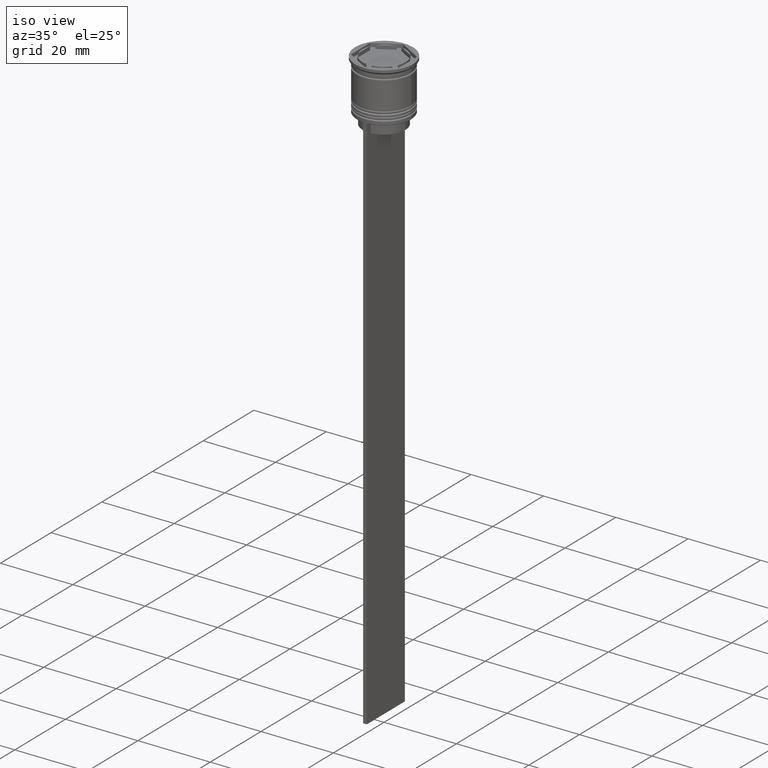
[diagram: clean part render]
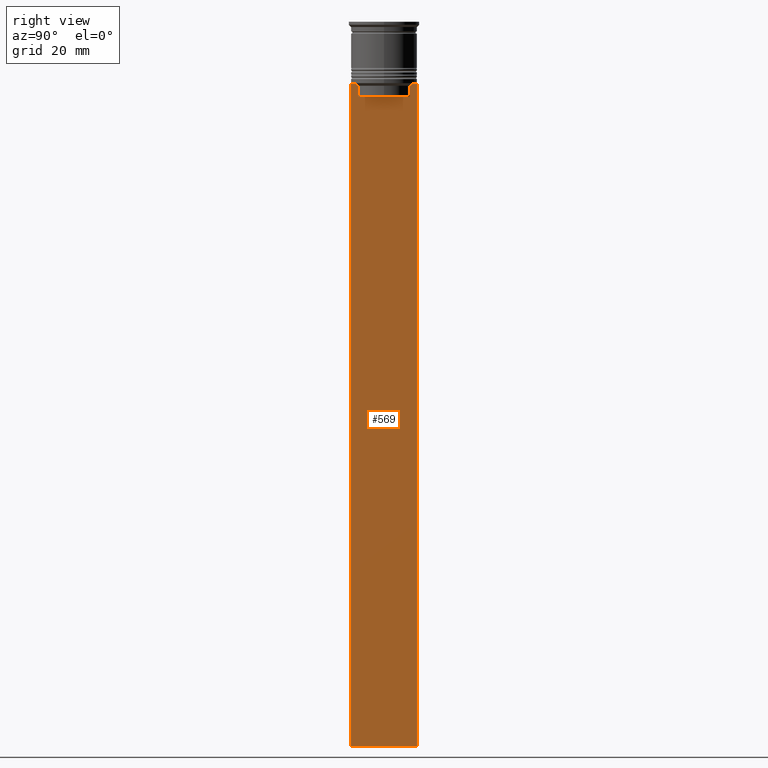
[diagram: tour spotlight — one face highlighted and labeled with its STEP entity id]
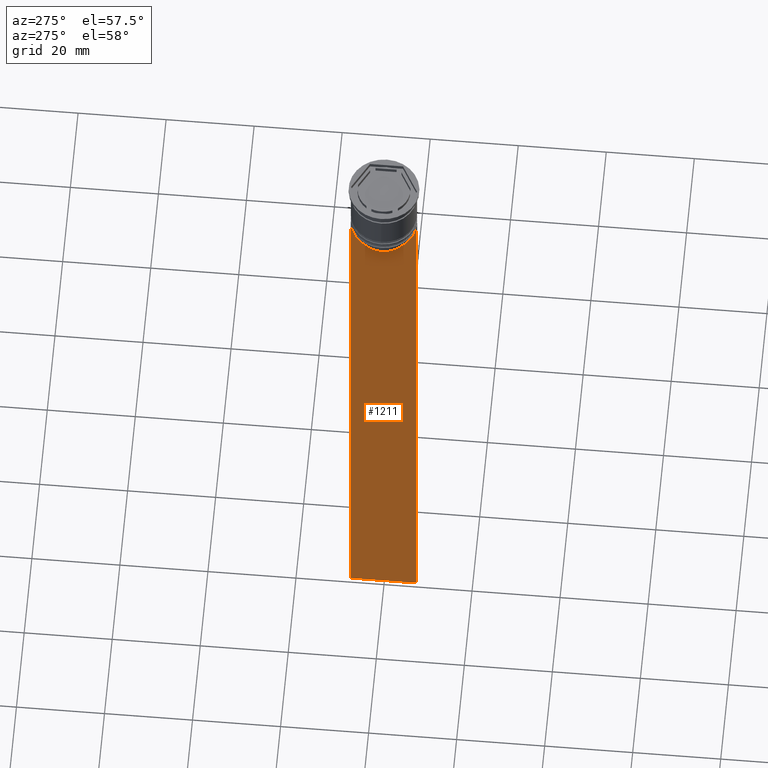
[diagram: tour spotlight — one face highlighted and labeled with its STEP entity id]
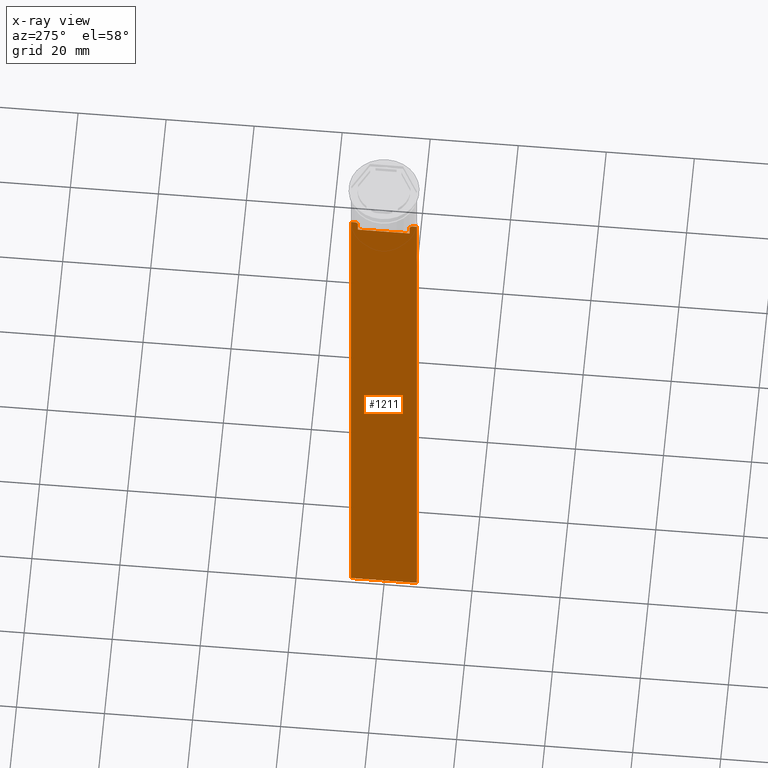
[diagram: x-ray of the same camera — body ghosted, this tour face saturated]
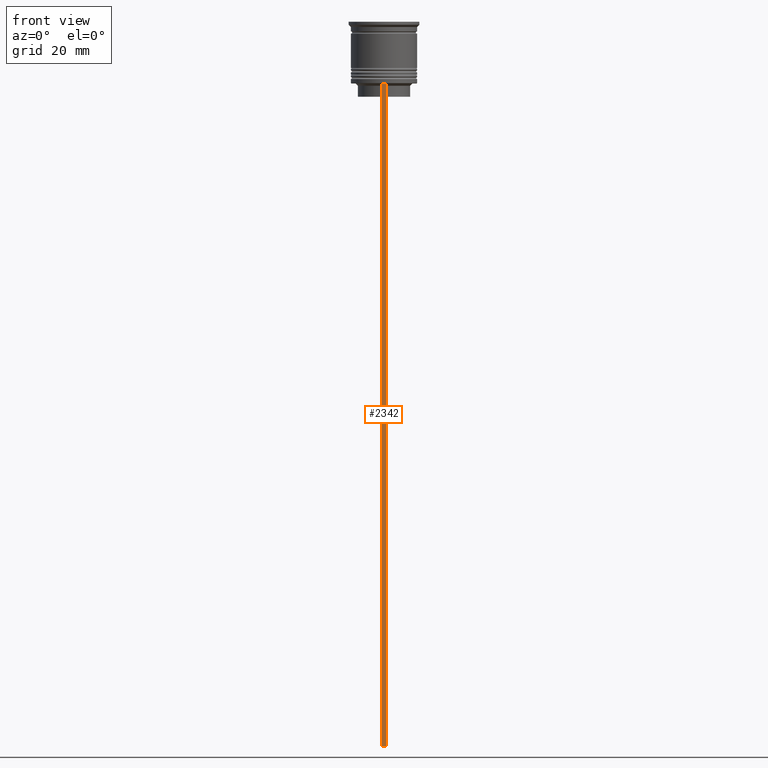
[diagram: tour spotlight — one face highlighted and labeled with its STEP entity id]
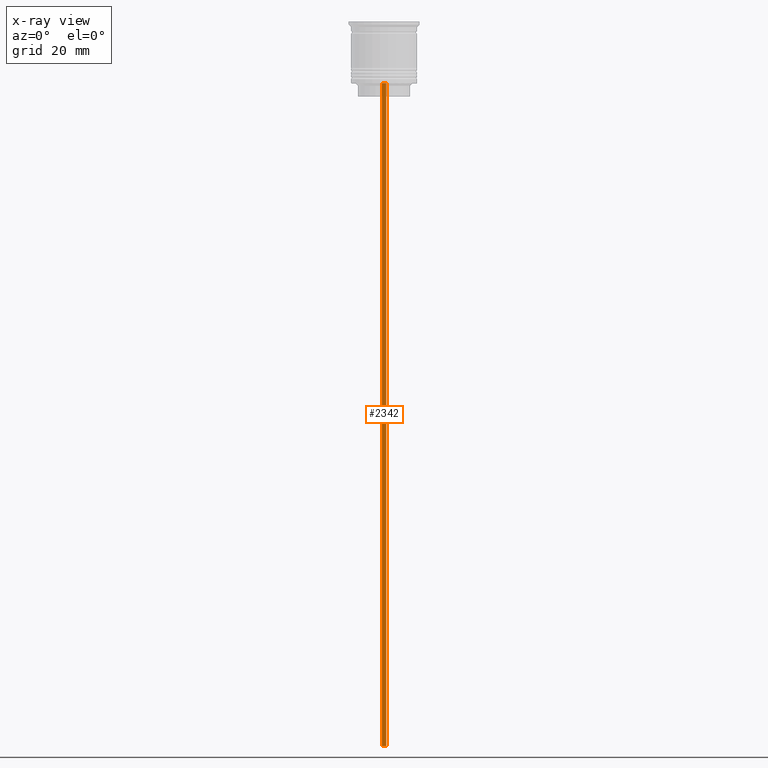
[diagram: x-ray of the same camera — body ghosted, this tour face saturated]
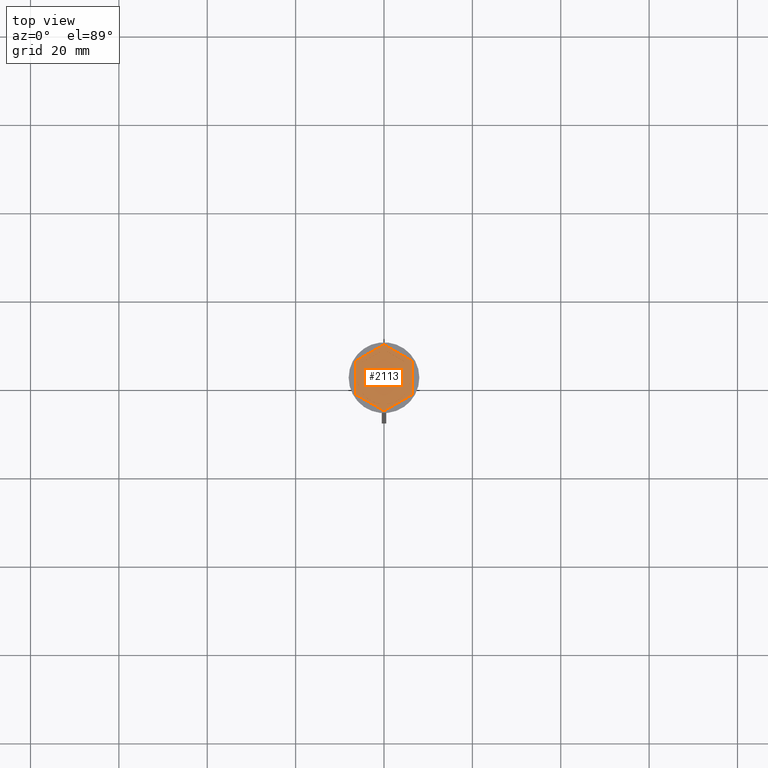
[diagram: tour spotlight — one face highlighted and labeled with its STEP entity id]
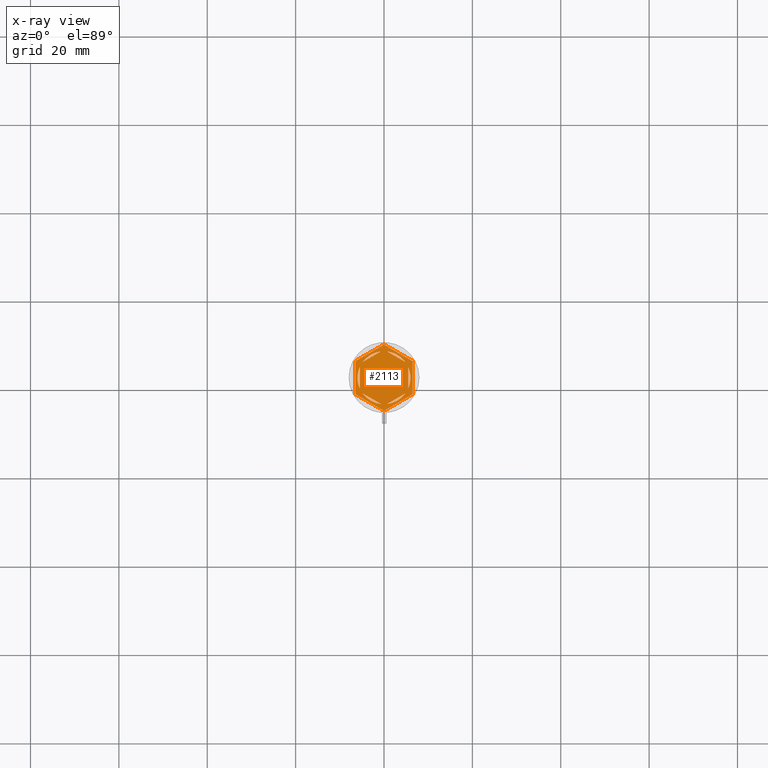
[diagram: x-ray of the same camera — body ghosted, this tour face saturated]
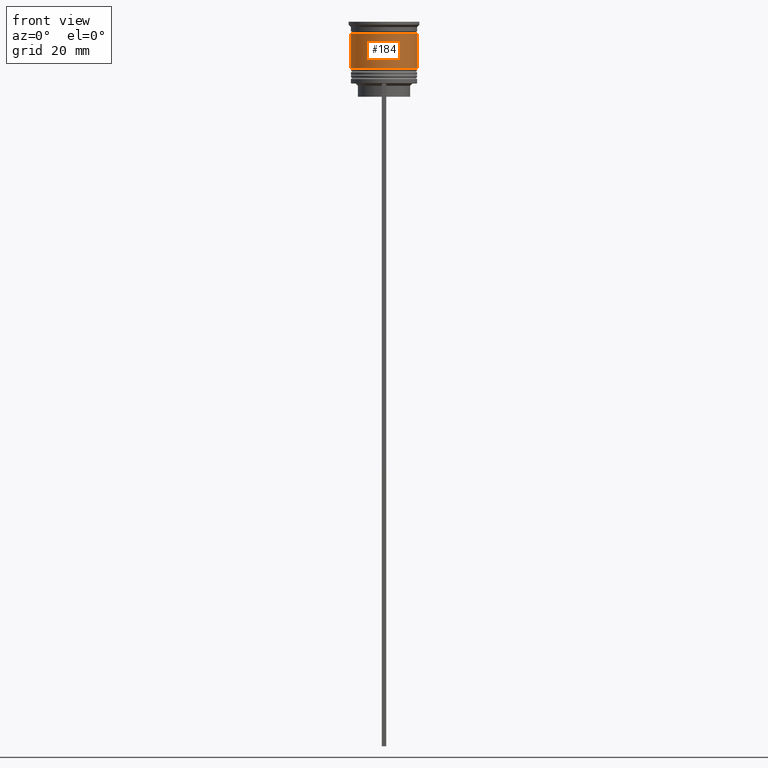
[diagram: tour spotlight — one face highlighted and labeled with its STEP entity id]
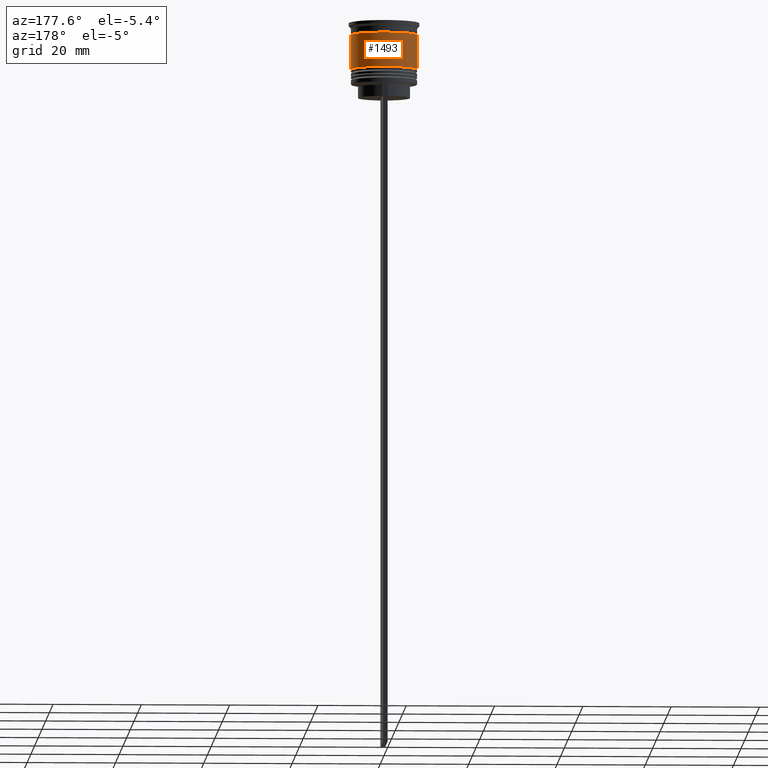
[diagram: tour spotlight — one face highlighted and labeled with its STEP entity id]
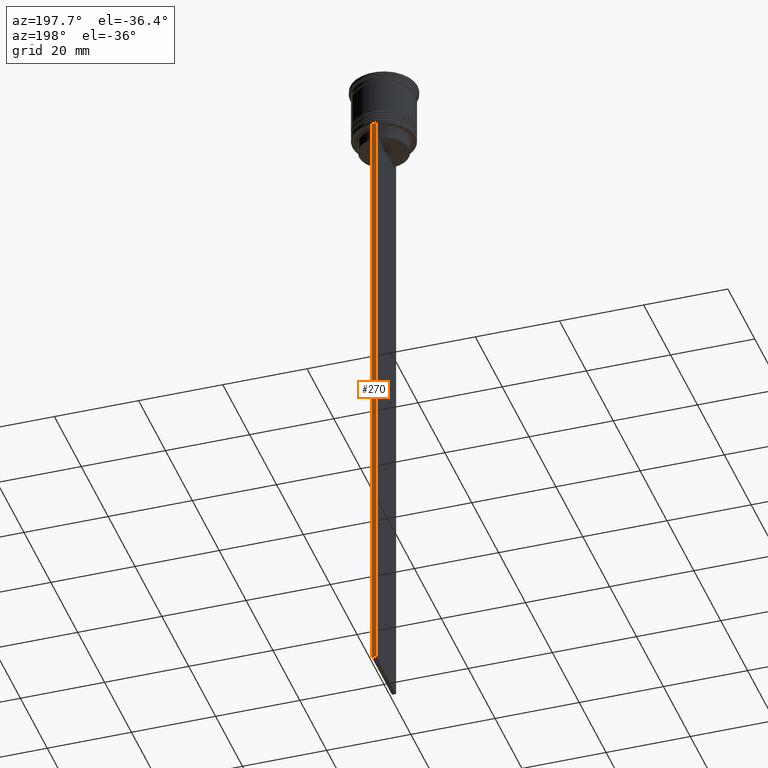
[diagram: tour spotlight — one face highlighted and labeled with its STEP entity id]
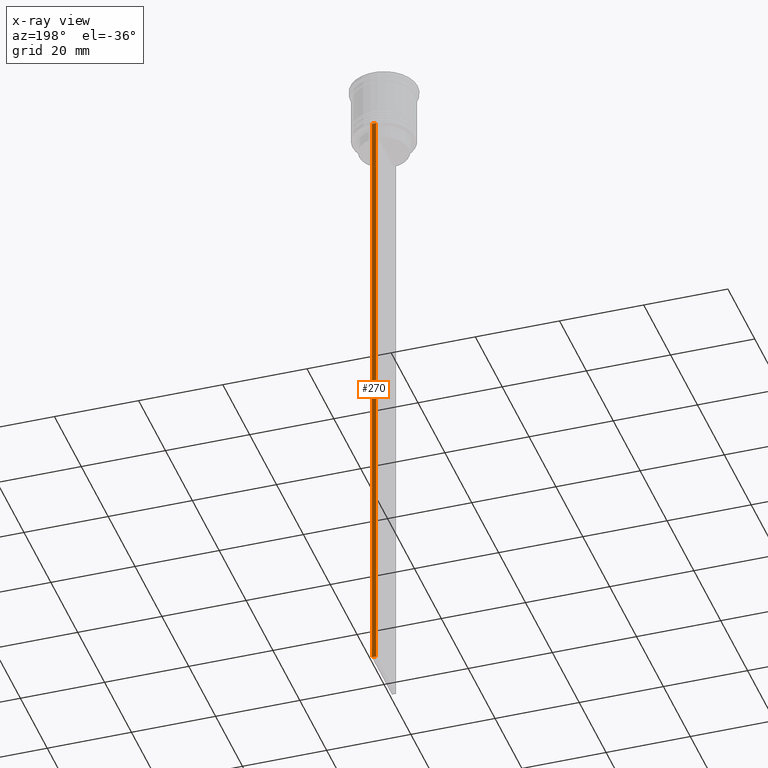
[diagram: x-ray of the same camera — body ghosted, this tour face saturated]
A machine part: a face-by-face anatomy tour. The part has 90 B-rep faces; the first image is the clean iso view, then the 7 largest visible faces are spotlighted one at a time (largest first), each with its STEP entity span.

Face 1 — right view, entity #569. In plain terms, the highlighted planar face has unit normal (-1, 0, 0).
Definition (entity closure, byte-faithful):
#11 = VECTOR ( 'NONE', #1838, 1000.000000000000000 ) ;
#62 = VERTEX_POINT ( 'NONE', #2076 ) ;
#76 = ORIENTED_EDGE ( 'NONE', *, *, #1816, .T. ) ;
#96 = DIRECTION ( 'NONE',  ( 0.000000000000000000, 0.000000000000000000, -1.000000000000000000 ) ) ;
#154 = CARTESIAN_POINT ( 'NONE',  ( 0.5000000000000000000, -7.499999999999999112, -14.00000000000000178 ) ) ;
#223 = CARTESIAN_POINT ( 'NONE',  ( 0.5000000000000000000, -6.380438856379706536, -14.00000000000000178 ) ) ;
#229 = LINE ( 'NONE', #1014, #2006 ) ;
#249 = ORIENTED_EDGE ( 'NONE', *, *, #329, .T. ) ;
#303 = VECTOR ( 'NONE', #1258, 1000.000000000000000 ) ;
#324 = DIRECTION ( 'NONE',  ( 0.000000000000000000, -1.000000000000000000, 0.000000000000000000 ) ) ;
#329 = EDGE_CURVE ( 'NONE', #1958, #1247, #229, .T. ) ;
#335 = DIRECTION ( 'NONE',  ( 0.000000000000000000, -1.000000000000000000, 0.000000000000000000 ) ) ;
#342 = AXIS2_PLACEMENT_3D ( 'NONE', #934, #1707, #2340 ) ;
#354 = CARTESIAN_POINT ( 'NONE',  ( 0.5000000000000000000, -5.878775382679625849, -14.50000000000000000 ) ) ;
#356 = DIRECTION ( 'NONE',  ( 0.000000000000000000, 0.000000000000000000, -1.000000000000000000 ) ) ;
#360 = VERTEX_POINT ( 'NONE', #991 ) ;
#369 = CARTESIAN_POINT ( 'NONE',  ( 0.5000000000000000000, -6.213239311785844876, -14.16668851110870087 ) ) ;
#384 = CARTESIAN_POINT ( 'NONE',  ( 0.5000000000000000000, -5.878775382679625849, -17.00000000000000000 ) ) ;
#401 = VERTEX_POINT ( 'NONE', #1411 ) ;
#426 = DIRECTION ( 'NONE',  ( 0.000000000000000000, -1.000000000000000000, 0.000000000000000000 ) ) ;
#447 = EDGE_CURVE ( 'NONE', #1002, #1958, #2483, .T. ) ;
#454 = ORIENTED_EDGE ( 'NONE', *, *, #1018, .T. ) ;
#471 = LINE ( 'NONE', #2014, #1735 ) ;
#475 = VECTOR ( 'NONE', #335, 1000.000000000000000 ) ;
#490 = CARTESIAN_POINT ( 'NONE',  ( 0.5000000000000000000, -5.878775382679625849, 0.000000000000000000 ) ) ;
#502 = VECTOR ( 'NONE', #356, 1000.000000000000000 ) ;
#509 = CARTESIAN_POINT ( 'NONE',  ( 0.5000000000000000000, -7.499999999999999112, 1.033296378372908997 ) ) ;
#520 = CARTESIAN_POINT ( 'NONE',  ( 0.5000000000000000000, -7.383088784512886527, -14.00000000000000178 ) ) ;
#569 = ADVANCED_FACE ( 'NONE', ( #888 ), #1506, .F. ) ;
#603 = ORIENTED_EDGE ( 'NONE', *, *, #942, .T. ) ;
#617 = VERTEX_POINT ( 'NONE', #223 ) ;
#713 = B_SPLINE_CURVE_WITH_KNOTS ( 'NONE', 3,
 ( #354, #2132, #369, #1356 ),
 .UNSPECIFIED., .F., .F.,
 ( 4, 4 ),
 ( 0.02765270321082434479, 0.02836198271238431559 ),
 .UNSPECIFIED. ) ;
#833 = VECTOR ( 'NONE', #426, 1000.000000000000000 ) ;
#846 = VECTOR ( 'NONE', #1210, 1000.000000000000000 ) ;
#861 = ORIENTED_EDGE ( 'NONE', *, *, #447, .T. ) ;
#881 = VERTEX_POINT ( 'NONE', #1729 ) ;
#888 = FACE_OUTER_BOUND ( 'NONE', #1371, .T. ) ;
#910 = ORIENTED_EDGE ( 'NONE', *, *, #1756, .T. ) ;
#934 = CARTESIAN_POINT ( 'NONE',  ( 0.5000000000000000000, -7.499999999999999112, 1.033296378372908997 ) ) ;
#942 = EDGE_CURVE ( 'NONE', #2013, #1326, #1695, .T. ) ;
#969 = DIRECTION ( 'NONE',  ( 0.000000000000000000, -1.000000000000000000, 0.000000000000000000 ) ) ;
#979 = CARTESIAN_POINT ( 'NONE',  ( 0.5000000000000000000, -7.499999999999999112, -14.00000000000000178 ) ) ;
#991 = CARTESIAN_POINT ( 'NONE',  ( 0.5000000000000000000, 7.383088784512886527, -14.00000000000000178 ) ) ;
#1002 = VERTEX_POINT ( 'NONE', #154 ) ;
#1014 = CARTESIAN_POINT ( 'NONE',  ( 0.5000000000000000000, -7.499999999999999112, -163.9999999999999716 ) ) ;
#1018 = EDGE_CURVE ( 'NONE', #2180, #401, #1694, .T. ) ;
#1167 = ORIENTED_EDGE ( 'NONE', *, *, #1687, .F. ) ;
#1210 = DIRECTION ( 'NONE',  ( 0.000000000000000000, 0.000000000000000000, -1.000000000000000000 ) ) ;
#1247 = VERTEX_POINT ( 'NONE', #2112 ) ;
#1252 = EDGE_CURVE ( 'NONE', #360, #2180, #1361, .T. ) ;
#1258 = DIRECTION ( 'NONE',  ( -0.000000000000000000, -0.000000000000000000, 1.000000000000000000 ) ) ;
#1326 = VERTEX_POINT ( 'NONE', #1806 ) ;
#1344 = ORIENTED_EDGE ( 'NONE', *, *, #1867, .T. ) ;
#1356 = CARTESIAN_POINT ( 'NONE',  ( 0.5000000000000000000, -6.380438856379706536, -14.00000000000000178 ) ) ;
#1361 = LINE ( 'NONE', #979, #1396 ) ;
#1371 = EDGE_LOOP ( 'NONE', ( #1972, #454, #910, #1438, #603, #1516, #1344, #76, #861, #249, #1167, #1652 ) ) ;
#1396 = VECTOR ( 'NONE', #969, 1000.000000000000000 ) ;
#1411 = CARTESIAN_POINT ( 'NONE',  ( 0.5000000000000000000, 5.878775382679625849, -14.50000000000000000 ) ) ;
#1438 = ORIENTED_EDGE ( 'NONE', *, *, #2273, .T. ) ;
#1498 = CARTESIAN_POINT ( 'NONE',  ( 0.5000000000000000000, 5.899999999999998579, -17.00000000000000000 ) ) ;
#1506 = PLANE ( 'NONE',  #342 ) ;
#1510 = LINE ( 'NONE', #1686, #475 ) ;
#1516 = ORIENTED_EDGE ( 'NONE', *, *, #2369, .T. ) ;
#1546 = EDGE_CURVE ( 'NONE', #62, #360, #2148, .T. ) ;
#1547 = DIRECTION ( 'NONE',  ( 0.000000000000000000, 1.000000000000000000, 0.000000000000000000 ) ) ;
#1652 = ORIENTED_EDGE ( 'NONE', *, *, #1546, .T. ) ;
#1686 = CARTESIAN_POINT ( 'NONE',  ( 0.5000000000000000000, -7.499999999999999112, -14.00000000000000178 ) ) ;
#1687 = EDGE_CURVE ( 'NONE', #62, #1247, #2398, .T. ) ;
#1694 = B_SPLINE_CURVE_WITH_KNOTS ( 'NONE', 3,
 ( #2073, #2093, #2421, #1857 ),
 .UNSPECIFIED., .F., .F.,
 ( 4, 4 ),
 ( 0.01087727669788152163, 0.01158556069794289788 ),
 .UNSPECIFIED. ) ;
#1695 = LINE ( 'NONE', #490, #303 ) ;
#1707 = DIRECTION ( 'NONE',  ( -1.000000000000000000, 0.000000000000000000, 0.000000000000000000 ) ) ;
#1729 = CARTESIAN_POINT ( 'NONE',  ( 0.5000000000000000000, 5.878775382679625849, -17.00000000000000000 ) ) ;
#1735 = VECTOR ( 'NONE', #96, 1000.000000000000000 ) ;
#1756 = EDGE_CURVE ( 'NONE', #401, #881, #471, .T. ) ;
#1806 = CARTESIAN_POINT ( 'NONE',  ( 0.5000000000000000000, -5.878775382679625849, -14.50000000000000000 ) ) ;
#1816 = EDGE_CURVE ( 'NONE', #2194, #1002, #2064, .T. ) ;
#1838 = DIRECTION ( 'NONE',  ( 0.000000000000000000, -1.000000000000000000, 0.000000000000000000 ) ) ;
#1857 = CARTESIAN_POINT ( 'NONE',  ( 0.5000000000000000000, 5.878775382679625849, -14.50000000000000000 ) ) ;
#1867 = EDGE_CURVE ( 'NONE', #617, #2194, #1510, .T. ) ;
#1958 = VERTEX_POINT ( 'NONE', #2328 ) ;
#1965 = CARTESIAN_POINT ( 'NONE',  ( 0.5000000000000000000, -7.499999999999999112, -14.00000000000000178 ) ) ;
#1972 = ORIENTED_EDGE ( 'NONE', *, *, #1252, .T. ) ;
#2006 = VECTOR ( 'NONE', #1547, 1000.000000000000000 ) ;
#2013 = VERTEX_POINT ( 'NONE', #384 ) ;
#2014 = CARTESIAN_POINT ( 'NONE',  ( 0.5000000000000000000, 5.878775382679625849, 0.000000000000000000 ) ) ;
#2019 = VECTOR ( 'NONE', #324, 1000.000000000000000 ) ;
#2026 = CARTESIAN_POINT ( 'NONE',  ( 0.5000000000000000000, 7.500000000000002665, 1.033296378372908997 ) ) ;
#2064 = LINE ( 'NONE', #2092, #2019 ) ;
#2073 = CARTESIAN_POINT ( 'NONE',  ( 0.5000000000000000000, 6.380438856379706536, -14.00000000000000178 ) ) ;
#2076 = CARTESIAN_POINT ( 'NONE',  ( 0.5000000000000000000, 7.500000000000002665, -14.00000000000000178 ) ) ;
#2092 = CARTESIAN_POINT ( 'NONE',  ( 0.5000000000000000000, -7.499999999999999112, -14.00000000000000178 ) ) ;
#2093 = CARTESIAN_POINT ( 'NONE',  ( 0.5000000000000000000, 6.213239387491007015, -14.16668843563492430 ) ) ;
#2112 = CARTESIAN_POINT ( 'NONE',  ( 0.5000000000000000000, 7.500000000000002665, -163.9999999999999716 ) ) ;
#2132 = CARTESIAN_POINT ( 'NONE',  ( 0.5000000000000000000, -6.046019991840948293, -14.33335703538585726 ) ) ;
#2148 = LINE ( 'NONE', #1965, #833 ) ;
#2180 = VERTEX_POINT ( 'NONE', #2472 ) ;
#2194 = VERTEX_POINT ( 'NONE', #520 ) ;
#2273 = EDGE_CURVE ( 'NONE', #881, #2013, #2418, .T. ) ;
#2328 = CARTESIAN_POINT ( 'NONE',  ( 0.5000000000000000000, -7.499999999999999112, -163.9999999999999716 ) ) ;
#2340 = DIRECTION ( 'NONE',  ( 0.000000000000000000, 0.000000000000000000, 1.000000000000000000 ) ) ;
#2369 = EDGE_CURVE ( 'NONE', #1326, #617, #713, .T. ) ;
#2398 = LINE ( 'NONE', #2026, #846 ) ;
#2418 = LINE ( 'NONE', #1498, #11 ) ;
#2421 = CARTESIAN_POINT ( 'NONE',  ( 0.5000000000000000000, 6.046020074006152711, -14.33335695351623151 ) ) ;
#2472 = CARTESIAN_POINT ( 'NONE',  ( 0.5000000000000000000, 6.380438856379706536, -14.00000000000000178 ) ) ;
#2483 = LINE ( 'NONE', #509, #502 ) ;

Face 2 — auxiliary view, entity #1211. An x-ray twin of the same camera follows (body ghosted, this face saturated) — the face is partly hidden behind the body. In plain terms, the highlighted planar face has unit normal (-1, 0, 0).
Definition (entity closure, byte-faithful):
#6 = CARTESIAN_POINT ( 'NONE',  ( -0.5000000000000000000, 5.878775382679625849, -17.00000000000000000 ) ) ;
#38 = VECTOR ( 'NONE', #2002, 1000.000000000000000 ) ;
#78 = VERTEX_POINT ( 'NONE', #1350 ) ;
#87 = DIRECTION ( 'NONE',  ( 0.000000000000000000, -1.000000000000000000, 0.000000000000000000 ) ) ;
#150 = EDGE_CURVE ( 'NONE', #1545, #260, #1747, .T. ) ;
#204 = CARTESIAN_POINT ( 'NONE',  ( -0.5000000000000000000, 5.899999999999998579, -17.00000000000000000 ) ) ;
#225 = VERTEX_POINT ( 'NONE', #913 ) ;
#260 = VERTEX_POINT ( 'NONE', #2121 ) ;
#263 = ORIENTED_EDGE ( 'NONE', *, *, #761, .F. ) ;
#282 = EDGE_CURVE ( 'NONE', #754, #225, #884, .T. ) ;
#288 = CARTESIAN_POINT ( 'NONE',  ( -0.5000000000000000000, -5.878775382679625849, -17.00000000000000000 ) ) ;
#348 = AXIS2_PLACEMENT_3D ( 'NONE', #573, #1117, #916 ) ;
#368 = DIRECTION ( 'NONE',  ( 0.000000000000000000, 0.000000000000000000, -1.000000000000000000 ) ) ;
#375 = LINE ( 'NONE', #2309, #2162 ) ;
#400 = CARTESIAN_POINT ( 'NONE',  ( -0.5000000000000000000, -6.380438856379706536, -14.00000000000000178 ) ) ;
#405 = CARTESIAN_POINT ( 'NONE',  ( -0.5000000000000000000, -7.499999999999999112, -14.00000000000000178 ) ) ;
#476 = VERTEX_POINT ( 'NONE', #2177 ) ;
#511 = CARTESIAN_POINT ( 'NONE',  ( -0.5000000000000000000, -7.499999999999999112, 1.033296378372908997 ) ) ;
#524 = CARTESIAN_POINT ( 'NONE',  ( -0.5000000000000000000, 6.213239387491007015, -14.16668843563492430 ) ) ;
#525 = CARTESIAN_POINT ( 'NONE',  ( -0.5000000000000000000, 5.878775382679625849, -14.50000000000000000 ) ) ;
#555 = VECTOR ( 'NONE', #736, 1000.000000000000000 ) ;
#573 = CARTESIAN_POINT ( 'NONE',  ( -0.5000000000000000000, -7.499999999999999112, 1.033296378372908997 ) ) ;
#586 = EDGE_CURVE ( 'NONE', #1113, #1991, #1377, .T. ) ;
#591 = CARTESIAN_POINT ( 'NONE',  ( -0.5000000000000000000, 7.500000000000002665, -14.00000000000000178 ) ) ;
#593 = CARTESIAN_POINT ( 'NONE',  ( -0.5000000000000000000, -6.213239311785844876, -14.16668851110870087 ) ) ;
#621 = DIRECTION ( 'NONE',  ( 0.000000000000000000, -1.000000000000000000, 0.000000000000000000 ) ) ;
#690 = ORIENTED_EDGE ( 'NONE', *, *, #1935, .F. ) ;
#694 = PLANE ( 'NONE',  #348 ) ;
#736 = DIRECTION ( 'NONE',  ( 0.000000000000000000, 0.000000000000000000, -1.000000000000000000 ) ) ;
#754 = VERTEX_POINT ( 'NONE', #1653 ) ;
#757 = CARTESIAN_POINT ( 'NONE',  ( -0.5000000000000000000, 5.878775382679625849, -14.50000000000000000 ) ) ;
#761 = EDGE_CURVE ( 'NONE', #225, #1545, #375, .T. ) ;
#773 = CARTESIAN_POINT ( 'NONE',  ( -0.5000000000000000000, -7.499999999999999112, -163.9999999999999716 ) ) ;
#884 = B_SPLINE_CURVE_WITH_KNOTS ( 'NONE', 3,
 ( #1360, #2135, #593, #400 ),
 .UNSPECIFIED., .F., .F.,
 ( 4, 4 ),
 ( 0.02765270321082434479, 0.02836198271238431559 ),
 .UNSPECIFIED. ) ;
#892 = CARTESIAN_POINT ( 'NONE',  ( -0.5000000000000000000, -7.499999999999999112, -14.00000000000000178 ) ) ;
#913 = CARTESIAN_POINT ( 'NONE',  ( -0.5000000000000000000, -6.380438856379706536, -14.00000000000000178 ) ) ;
#916 = DIRECTION ( 'NONE',  ( 0.000000000000000000, 0.000000000000000000, 1.000000000000000000 ) ) ;
#955 = CARTESIAN_POINT ( 'NONE',  ( -0.5000000000000000000, -5.878775382679625849, 0.000000000000000000 ) ) ;
#976 = ORIENTED_EDGE ( 'NONE', *, *, #150, .F. ) ;
#1039 = VECTOR ( 'NONE', #1952, 1000.000000000000000 ) ;
#1056 = LINE ( 'NONE', #892, #1891 ) ;
#1060 = EDGE_CURVE ( 'NONE', #78, #476, #1845, .T. ) ;
#1113 = VERTEX_POINT ( 'NONE', #525 ) ;
#1117 = DIRECTION ( 'NONE',  ( -1.000000000000000000, 0.000000000000000000, 0.000000000000000000 ) ) ;
#1155 = CARTESIAN_POINT ( 'NONE',  ( -0.5000000000000000000, -7.499999999999999112, -163.9999999999999716 ) ) ;
#1181 = DIRECTION ( 'NONE',  ( 0.000000000000000000, 1.000000000000000000, 0.000000000000000000 ) ) ;
#1192 = DIRECTION ( 'NONE',  ( 0.000000000000000000, 0.000000000000000000, -1.000000000000000000 ) ) ;
#1199 = LINE ( 'NONE', #955, #38 ) ;
#1211 = ADVANCED_FACE ( 'NONE', ( #2434 ), #694, .T. ) ;
#1232 = B_SPLINE_CURVE_WITH_KNOTS ( 'NONE', 3,
 ( #2300, #524, #2491, #757 ),
 .UNSPECIFIED., .F., .F.,
 ( 4, 4 ),
 ( 0.01087727669788152163, 0.01158556069794289788 ),
 .UNSPECIFIED. ) ;
#1265 = VECTOR ( 'NONE', #368, 1000.000000000000000 ) ;
#1299 = EDGE_CURVE ( 'NONE', #2028, #2161, #1920, .T. ) ;
#1300 = EDGE_CURVE ( 'NONE', #2028, #78, #1056, .T. ) ;
#1307 = VECTOR ( 'NONE', #621, 1000.000000000000000 ) ;
#1333 = LINE ( 'NONE', #1155, #2096 ) ;
#1350 = CARTESIAN_POINT ( 'NONE',  ( -0.5000000000000000000, 7.383088784512886527, -14.00000000000000178 ) ) ;
#1358 = VECTOR ( 'NONE', #1192, 1000.000000000000000 ) ;
#1359 = LINE ( 'NONE', #204, #1039 ) ;
#1360 = CARTESIAN_POINT ( 'NONE',  ( -0.5000000000000000000, -5.878775382679625849, -14.50000000000000000 ) ) ;
#1377 = LINE ( 'NONE', #2325, #1265 ) ;
#1381 = EDGE_CURVE ( 'NONE', #476, #1113, #1232, .T. ) ;
#1412 = ORIENTED_EDGE ( 'NONE', *, *, #282, .F. ) ;
#1494 = CARTESIAN_POINT ( 'NONE',  ( -0.5000000000000000000, -7.499999999999999112, -14.00000000000000178 ) ) ;
#1509 = ORIENTED_EDGE ( 'NONE', *, *, #1621, .F. ) ;
#1545 = VERTEX_POINT ( 'NONE', #2157 ) ;
#1549 = CARTESIAN_POINT ( 'NONE',  ( -0.5000000000000000000, 7.500000000000002665, 1.033296378372908997 ) ) ;
#1621 = EDGE_CURVE ( 'NONE', #1712, #754, #1199, .T. ) ;
#1653 = CARTESIAN_POINT ( 'NONE',  ( -0.5000000000000000000, -5.878775382679625849, -14.50000000000000000 ) ) ;
#1712 = VERTEX_POINT ( 'NONE', #288 ) ;
#1747 = LINE ( 'NONE', #405, #1307 ) ;
#1779 = EDGE_LOOP ( 'NONE', ( #2308, #2114, #2355, #2290, #690, #2147, #976, #263, #1412, #1509, #1836, #1862 ) ) ;
#1836 = ORIENTED_EDGE ( 'NONE', *, *, #2037, .F. ) ;
#1845 = LINE ( 'NONE', #1494, #2088 ) ;
#1862 = ORIENTED_EDGE ( 'NONE', *, *, #586, .F. ) ;
#1891 = VECTOR ( 'NONE', #87, 1000.000000000000000 ) ;
#1917 = EDGE_CURVE ( 'NONE', #260, #2424, #2243, .T. ) ;
#1920 = LINE ( 'NONE', #1549, #1358 ) ;
#1935 = EDGE_CURVE ( 'NONE', #2424, #2161, #1333, .T. ) ;
#1941 = DIRECTION ( 'NONE',  ( 0.000000000000000000, -1.000000000000000000, 0.000000000000000000 ) ) ;
#1952 = DIRECTION ( 'NONE',  ( 0.000000000000000000, -1.000000000000000000, 0.000000000000000000 ) ) ;
#1991 = VERTEX_POINT ( 'NONE', #6 ) ;
#2002 = DIRECTION ( 'NONE',  ( -0.000000000000000000, -0.000000000000000000, 1.000000000000000000 ) ) ;
#2028 = VERTEX_POINT ( 'NONE', #591 ) ;
#2037 = EDGE_CURVE ( 'NONE', #1991, #1712, #1359, .T. ) ;
#2088 = VECTOR ( 'NONE', #2270, 1000.000000000000000 ) ;
#2096 = VECTOR ( 'NONE', #1181, 1000.000000000000000 ) ;
#2114 = ORIENTED_EDGE ( 'NONE', *, *, #1060, .F. ) ;
#2121 = CARTESIAN_POINT ( 'NONE',  ( -0.5000000000000000000, -7.499999999999999112, -14.00000000000000178 ) ) ;
#2135 = CARTESIAN_POINT ( 'NONE',  ( -0.5000000000000000000, -6.046019991840948293, -14.33335703538585726 ) ) ;
#2147 = ORIENTED_EDGE ( 'NONE', *, *, #1917, .F. ) ;
#2157 = CARTESIAN_POINT ( 'NONE',  ( -0.5000000000000000000, -7.383088784512886527, -14.00000000000000178 ) ) ;
#2161 = VERTEX_POINT ( 'NONE', #2403 ) ;
#2162 = VECTOR ( 'NONE', #1941, 1000.000000000000000 ) ;
#2177 = CARTESIAN_POINT ( 'NONE',  ( -0.5000000000000000000, 6.380438856379706536, -14.00000000000000178 ) ) ;
#2243 = LINE ( 'NONE', #511, #555 ) ;
#2270 = DIRECTION ( 'NONE',  ( 0.000000000000000000, -1.000000000000000000, 0.000000000000000000 ) ) ;
#2290 = ORIENTED_EDGE ( 'NONE', *, *, #1299, .T. ) ;
#2300 = CARTESIAN_POINT ( 'NONE',  ( -0.5000000000000000000, 6.380438856379706536, -14.00000000000000178 ) ) ;
#2308 = ORIENTED_EDGE ( 'NONE', *, *, #1381, .F. ) ;
#2309 = CARTESIAN_POINT ( 'NONE',  ( -0.5000000000000000000, -7.499999999999999112, -14.00000000000000178 ) ) ;
#2325 = CARTESIAN_POINT ( 'NONE',  ( -0.5000000000000000000, 5.878775382679625849, 0.000000000000000000 ) ) ;
#2355 = ORIENTED_EDGE ( 'NONE', *, *, #1300, .F. ) ;
#2403 = CARTESIAN_POINT ( 'NONE',  ( -0.5000000000000000000, 7.500000000000002665, -163.9999999999999716 ) ) ;
#2424 = VERTEX_POINT ( 'NONE', #773 ) ;
#2434 = FACE_OUTER_BOUND ( 'NONE', #1779, .T. ) ;
#2491 = CARTESIAN_POINT ( 'NONE',  ( -0.5000000000000000000, 6.046020074006152711, -14.33335695351623151 ) ) ;

Face 3 — front view, entity #2342. An x-ray twin of the same camera follows (body ghosted, this face saturated) — the face is partly hidden behind the body. In plain terms, the highlighted planar face has unit normal (0, -1, -0).
Definition (entity closure, byte-faithful):
#154 = CARTESIAN_POINT ( 'NONE',  ( 0.5000000000000000000, -7.499999999999999112, -14.00000000000000178 ) ) ;
#169 = ORIENTED_EDGE ( 'NONE', *, *, #447, .F. ) ;
#188 = LINE ( 'NONE', #2239, #1798 ) ;
#260 = VERTEX_POINT ( 'NONE', #2121 ) ;
#277 = ORIENTED_EDGE ( 'NONE', *, *, #495, .F. ) ;
#356 = DIRECTION ( 'NONE',  ( 0.000000000000000000, 0.000000000000000000, -1.000000000000000000 ) ) ;
#447 = EDGE_CURVE ( 'NONE', #1002, #1958, #2483, .T. ) ;
#466 = EDGE_CURVE ( 'NONE', #260, #1002, #188, .T. ) ;
#495 = EDGE_CURVE ( 'NONE', #1958, #2424, #1615, .T. ) ;
#502 = VECTOR ( 'NONE', #356, 1000.000000000000000 ) ;
#509 = CARTESIAN_POINT ( 'NONE',  ( 0.5000000000000000000, -7.499999999999999112, 1.033296378372908997 ) ) ;
#511 = CARTESIAN_POINT ( 'NONE',  ( -0.5000000000000000000, -7.499999999999999112, 1.033296378372908997 ) ) ;
#555 = VECTOR ( 'NONE', #736, 1000.000000000000000 ) ;
#736 = DIRECTION ( 'NONE',  ( 0.000000000000000000, 0.000000000000000000, -1.000000000000000000 ) ) ;
#773 = CARTESIAN_POINT ( 'NONE',  ( -0.5000000000000000000, -7.499999999999999112, -163.9999999999999716 ) ) ;
#1002 = VERTEX_POINT ( 'NONE', #154 ) ;
#1019 = CARTESIAN_POINT ( 'NONE',  ( 0.5000000000000000000, -7.499999999999999112, -163.9999999999999716 ) ) ;
#1342 = CARTESIAN_POINT ( 'NONE',  ( 0.5000000000000000000, -7.499999999999999112, 1.033296378372908997 ) ) ;
#1554 = DIRECTION ( 'NONE',  ( 0.000000000000000000, -1.000000000000000000, -0.000000000000000000 ) ) ;
#1566 = ORIENTED_EDGE ( 'NONE', *, *, #466, .F. ) ;
#1615 = LINE ( 'NONE', #1019, #2279 ) ;
#1708 = PLANE ( 'NONE',  #2339 ) ;
#1750 = DIRECTION ( 'NONE',  ( 0.000000000000000000, 0.000000000000000000, -1.000000000000000000 ) ) ;
#1798 = VECTOR ( 'NONE', #2044, 1000.000000000000000 ) ;
#1882 = FACE_OUTER_BOUND ( 'NONE', #1892, .T. ) ;
#1892 = EDGE_LOOP ( 'NONE', ( #1566, #2338, #277, #169 ) ) ;
#1917 = EDGE_CURVE ( 'NONE', #260, #2424, #2243, .T. ) ;
#1958 = VERTEX_POINT ( 'NONE', #2328 ) ;
#2044 = DIRECTION ( 'NONE',  ( 1.000000000000000000, 0.000000000000000000, 0.000000000000000000 ) ) ;
#2121 = CARTESIAN_POINT ( 'NONE',  ( -0.5000000000000000000, -7.499999999999999112, -14.00000000000000178 ) ) ;
#2239 = CARTESIAN_POINT ( 'NONE',  ( 0.5000000000000000000, -7.499999999999999112, -14.00000000000000178 ) ) ;
#2243 = LINE ( 'NONE', #511, #555 ) ;
#2279 = VECTOR ( 'NONE', #2381, 1000.000000000000000 ) ;
#2328 = CARTESIAN_POINT ( 'NONE',  ( 0.5000000000000000000, -7.499999999999999112, -163.9999999999999716 ) ) ;
#2338 = ORIENTED_EDGE ( 'NONE', *, *, #1917, .T. ) ;
#2339 = AXIS2_PLACEMENT_3D ( 'NONE', #1342, #1554, #1750 ) ;
#2342 = ADVANCED_FACE ( 'NONE', ( #1882 ), #1708, .T. ) ;
#2381 = DIRECTION ( 'NONE',  ( -1.000000000000000000, 0.000000000000000000, 0.000000000000000000 ) ) ;
#2424 = VERTEX_POINT ( 'NONE', #773 ) ;
#2483 = LINE ( 'NONE', #509, #502 ) ;

Face 4 — top view, entity #2113. An x-ray twin of the same camera follows (body ghosted, this face saturated) — the face is partly hidden behind the body. In plain terms, the highlighted planar face has unit normal (0, 0, 1).
Definition (entity closure, byte-faithful):
#14 = VERTEX_POINT ( 'NONE', #2423 ) ;
#29 = VECTOR ( 'NONE', #1827, 1000.000000000000000 ) ;
#31 = EDGE_CURVE ( 'NONE', #837, #107, #1796, .T. ) ;
#52 = DIRECTION ( 'NONE',  ( 1.000000000000000000, 0.000000000000000000, 0.000000000000000000 ) ) ;
#81 = VECTOR ( 'NONE', #2326, 999.9999999999998863 ) ;
#93 = VERTEX_POINT ( 'NONE', #2087 ) ;
#100 = DIRECTION ( 'NONE',  ( 0.000000000000000000, 0.000000000000000000, 1.000000000000000000 ) ) ;
#107 = VERTEX_POINT ( 'NONE', #534 ) ;
#113 = VECTOR ( 'NONE', #798, 1000.000000000000000 ) ;
#116 = DIRECTION ( 'NONE',  ( 0.000000000000000000, 0.000000000000000000, 1.000000000000000000 ) ) ;
#151 = CARTESIAN_POINT ( 'NONE',  ( -0.6733440342704829495, 5.962097601642593503, -1.000000000000000888 ) ) ;
#155 = CARTESIAN_POINT ( 'NONE',  ( 0.000000000000000000, 0.000000000000000000, -1.000000000000000000 ) ) ;
#156 = CARTESIAN_POINT ( 'NONE',  ( -4.280685092543093048E-16, -7.505553499465134060, -1.000000000000000000 ) ) ;
#163 = CARTESIAN_POINT ( 'NONE',  ( 6.500000000000000888, 3.752776749732567918, -1.000000000000000000 ) ) ;
#187 = DIRECTION ( 'NONE',  ( 1.000000000000000000, 0.000000000000000000, 0.000000000000000000 ) ) ;
#193 = VERTEX_POINT ( 'NONE', #2334 ) ;
#200 = EDGE_CURVE ( 'NONE', #410, #1397, #2482, .T. ) ;
#222 = VERTEX_POINT ( 'NONE', #163 ) ;
#226 = AXIS2_PLACEMENT_3D ( 'NONE', #1050, #100, #1666 ) ;
#227 = DIRECTION ( 'NONE',  ( 0.000000000000000000, 0.000000000000000000, 1.000000000000000000 ) ) ;
#228 = ORIENTED_EDGE ( 'NONE', *, *, #2003, .F. ) ;
#230 = ORIENTED_EDGE ( 'NONE', *, *, #1128, .F. ) ;
#232 = EDGE_CURVE ( 'NONE', #803, #93, #548, .T. ) ;
#252 = PLANE ( 'NONE',  #557 ) ;
#261 = FACE_BOUND ( 'NONE', #486, .T. ) ;
#284 = LINE ( 'NONE', #1046, #29 ) ;
#293 = CARTESIAN_POINT ( 'NONE',  ( 5.500000000000001776, 3.175426480542944407, -1.000000000000000888 ) ) ;
#305 = ORIENTED_EDGE ( 'NONE', *, *, #200, .F. ) ;
#306 = CARTESIAN_POINT ( 'NONE',  ( -6.500000000000000888, -3.752776749732568806, -1.000000000000000000 ) ) ;
#311 = EDGE_CURVE ( 'NONE', #1558, #803, #1398, .T. ) ;
#362 = CARTESIAN_POINT ( 'NONE',  ( -4.826655965729520048, -3.564181839986235723, -1.000000000000000888 ) ) ;
#381 = LINE ( 'NONE', #2103, #113 ) ;
#410 = VERTEX_POINT ( 'NONE', #469 ) ;
#412 = EDGE_LOOP ( 'NONE', ( #2282, #1618, #625, #769, #890, #1924 ) ) ;
#418 = EDGE_CURVE ( 'NONE', #1968, #193, #284, .T. ) ;
#433 = ORIENTED_EDGE ( 'NONE', *, *, #1458, .F. ) ;
#469 = CARTESIAN_POINT ( 'NONE',  ( -5.500000000000001776, 2.397915761656359113, -1.000000000000000888 ) ) ;
#486 = EDGE_LOOP ( 'NONE', ( #765, #433 ) ) ;
#506 = AXIS2_PLACEMENT_3D ( 'NONE', #1915, #2269, #1876 ) ;
#529 = DIRECTION ( 'NONE',  ( 0.8660254037844387076, -0.4999999999999997224, 0.000000000000000000 ) ) ;
#534 = CARTESIAN_POINT ( 'NONE',  ( 4.826655965729520048, -3.564181839986233946, -1.000000000000000888 ) ) ;
#548 = LINE ( 'NONE', #1511, #2361 ) ;
#557 = AXIS2_PLACEMENT_3D ( 'NONE', #864, #1001, #1032 ) ;
#558 = EDGE_CURVE ( 'NONE', #193, #1968, #2199, .T. ) ;
#577 = CARTESIAN_POINT ( 'NONE',  ( 6.499999999999999112, -3.752776749732567030, -1.000000000000000000 ) ) ;
#622 = VECTOR ( 'NONE', #1052, 1000.000000000000114 ) ;
#625 = ORIENTED_EDGE ( 'NONE', *, *, #232, .T. ) ;
#670 = AXIS2_PLACEMENT_3D ( 'NONE', #1151, #1165, #187 ) ;
#671 = CIRCLE ( 'NONE', #670, 6.000000000000000888 ) ;
#720 = CARTESIAN_POINT ( 'NONE',  ( 0.6733440342704825055, 5.962097601642593503, -1.000000000000000888 ) ) ;
#733 = DIRECTION ( 'NONE',  ( 1.000000000000000000, 0.000000000000000000, 0.000000000000000000 ) ) ;
#734 = DIRECTION ( 'NONE',  ( 0.8660254037844385966, 0.5000000000000001110, 0.000000000000000000 ) ) ;
#765 = ORIENTED_EDGE ( 'NONE', *, *, #31, .F. ) ;
#769 = ORIENTED_EDGE ( 'NONE', *, *, #2274, .T. ) ;
#798 = DIRECTION ( 'NONE',  ( 0.8660254037844385966, 0.5000000000000001110, -0.000000000000000000 ) ) ;
#803 = VERTEX_POINT ( 'NONE', #2042 ) ;
#815 = CARTESIAN_POINT ( 'NONE',  ( 0.000000000000000000, 0.000000000000000000, -1.000000000000000000 ) ) ;
#837 = VERTEX_POINT ( 'NONE', #1068 ) ;
#841 = VERTEX_POINT ( 'NONE', #362 ) ;
#864 = CARTESIAN_POINT ( 'NONE',  ( 0.000000000000000000, 0.000000000000000000, -1.000000000000000000 ) ) ;
#890 = ORIENTED_EDGE ( 'NONE', *, *, #2197, .T. ) ;
#903 = LINE ( 'NONE', #1131, #1156 ) ;
#917 = DIRECTION ( 'NONE',  ( -0.8660254037844387076, -0.4999999999999997224, 0.000000000000000000 ) ) ;
#997 = ORIENTED_EDGE ( 'NONE', *, *, #2184, .F. ) ;
#1001 = DIRECTION ( 'NONE',  ( 0.000000000000000000, 0.000000000000000000, 1.000000000000000000 ) ) ;
#1021 = FACE_BOUND ( 'NONE', #1524, .T. ) ;
#1029 = AXIS2_PLACEMENT_3D ( 'NONE', #815, #1548, #52 ) ;
#1032 = DIRECTION ( 'NONE',  ( 1.000000000000000000, 0.000000000000000000, -0.000000000000000000 ) ) ;
#1046 = CARTESIAN_POINT ( 'NONE',  ( 5.500000000000000000, -3.175426480542943519, -1.000000000000000888 ) ) ;
#1050 = CARTESIAN_POINT ( 'NONE',  ( 0.000000000000000000, 0.000000000000000000, -1.000000000000000000 ) ) ;
#1052 = DIRECTION ( 'NONE',  ( 0.8660254037844387076, -0.4999999999999997224, 0.000000000000000000 ) ) ;
#1068 = CARTESIAN_POINT ( 'NONE',  ( 0.6733440342704786197, -5.962097601642593503, -1.000000000000000888 ) ) ;
#1071 = LINE ( 'NONE', #1459, #1243 ) ;
#1073 = EDGE_LOOP ( 'NONE', ( #1346, #1697 ) ) ;
#1109 = ORIENTED_EDGE ( 'NONE', *, *, #1439, .F. ) ;
#1128 = EDGE_CURVE ( 'NONE', #1301, #14, #2032, .T. ) ;
#1131 = CARTESIAN_POINT ( 'NONE',  ( 6.499999999999999112, -3.752776749732567030, -1.000000000000000000 ) ) ;
#1151 = CARTESIAN_POINT ( 'NONE',  ( 0.000000000000000000, 0.000000000000000000, -1.000000000000000000 ) ) ;
#1156 = VECTOR ( 'NONE', #1888, 1000.000000000000000 ) ;
#1165 = DIRECTION ( 'NONE',  ( 0.000000000000000000, 0.000000000000000000, 1.000000000000000000 ) ) ;
#1174 = ORIENTED_EDGE ( 'NONE', *, *, #1564, .F. ) ;
#1204 = FACE_BOUND ( 'NONE', #2156, .T. ) ;
#1206 = DIRECTION ( 'NONE',  ( -0.8660254037844385966, -0.5000000000000001110, 0.000000000000000000 ) ) ;
#1243 = VECTOR ( 'NONE', #1302, 1000.000000000000000 ) ;
#1251 = EDGE_CURVE ( 'NONE', #222, #1558, #1573, .T. ) ;
#1267 = DIRECTION ( 'NONE',  ( 1.000000000000000000, 0.000000000000000000, 0.000000000000000000 ) ) ;
#1295 = CARTESIAN_POINT ( 'NONE',  ( -6.000000000000000888, 0.000000000000000000, -1.000000000000000000 ) ) ;
#1301 = VERTEX_POINT ( 'NONE', #720 ) ;
#1302 = DIRECTION ( 'NONE',  ( 0.000000000000000000, 1.000000000000000000, 0.000000000000000000 ) ) ;
#1306 = CARTESIAN_POINT ( 'NONE',  ( -1.734723475976807094E-15, -6.350852961085884374, -1.000000000000000888 ) ) ;
#1321 = ORIENTED_EDGE ( 'NONE', *, *, #2477, .F. ) ;
#1327 = AXIS2_PLACEMENT_3D ( 'NONE', #1743, #227, #2307 ) ;
#1346 = ORIENTED_EDGE ( 'NONE', *, *, #558, .F. ) ;
#1362 = CARTESIAN_POINT ( 'NONE',  ( -4.280685092543093048E-16, -7.505553499465134060, -1.000000000000000000 ) ) ;
#1373 = CARTESIAN_POINT ( 'NONE',  ( -5.500000000000001776, -2.397915761656359113, -1.000000000000000888 ) ) ;
#1383 = CARTESIAN_POINT ( 'NONE',  ( 5.500000000000001776, 2.397915761656360001, -1.000000000000000888 ) ) ;
#1391 = AXIS2_PLACEMENT_3D ( 'NONE', #1662, #2433, #1267 ) ;
#1397 = VERTEX_POINT ( 'NONE', #1295 ) ;
#1398 = LINE ( 'NONE', #1753, #1885 ) ;
#1413 = VECTOR ( 'NONE', #529, 1000.000000000000114 ) ;
#1439 = EDGE_CURVE ( 'NONE', #1397, #2015, #1595, .T. ) ;
#1444 = EDGE_CURVE ( 'NONE', #2440, #222, #903, .T. ) ;
#1451 = CIRCLE ( 'NONE', #1327, 6.000000000000000888 ) ;
#1458 = EDGE_CURVE ( 'NONE', #107, #837, #1679, .T. ) ;
#1459 = CARTESIAN_POINT ( 'NONE',  ( -5.500000000000001776, 3.175426480542942187, -1.000000000000000888 ) ) ;
#1511 = CARTESIAN_POINT ( 'NONE',  ( -6.500000000000000888, 3.752776749732564365, -1.000000000000000000 ) ) ;
#1524 = EDGE_LOOP ( 'NONE', ( #2055, #1770 ) ) ;
#1548 = DIRECTION ( 'NONE',  ( 0.000000000000000000, 0.000000000000000000, 1.000000000000000000 ) ) ;
#1558 = VERTEX_POINT ( 'NONE', #2125 ) ;
#1564 = EDGE_CURVE ( 'NONE', #841, #2271, #2131, .T. ) ;
#1570 = VECTOR ( 'NONE', #734, 1000.000000000000114 ) ;
#1573 = LINE ( 'NONE', #1583, #1932 ) ;
#1580 = FACE_BOUND ( 'NONE', #1586, .T. ) ;
#1582 = VERTEX_POINT ( 'NONE', #1362 ) ;
#1583 = CARTESIAN_POINT ( 'NONE',  ( 6.500000000000000888, 3.752776749732567918, -1.000000000000000000 ) ) ;
#1586 = EDGE_LOOP ( 'NONE', ( #305, #997, #1109 ) ) ;
#1595 = CIRCLE ( 'NONE', #506, 6.000000000000000888 ) ;
#1618 = ORIENTED_EDGE ( 'NONE', *, *, #311, .T. ) ;
#1662 = CARTESIAN_POINT ( 'NONE',  ( 0.000000000000000000, 0.000000000000000000, -1.000000000000000000 ) ) ;
#1666 = DIRECTION ( 'NONE',  ( 1.000000000000000000, 0.000000000000000000, 0.000000000000000000 ) ) ;
#1679 = LINE ( 'NONE', #1306, #1767 ) ;
#1697 = ORIENTED_EDGE ( 'NONE', *, *, #418, .F. ) ;
#1739 = CARTESIAN_POINT ( 'NONE',  ( -5.500000000000001776, -3.175426480542941743, -1.000000000000000888 ) ) ;
#1743 = CARTESIAN_POINT ( 'NONE',  ( 0.000000000000000000, 0.000000000000000000, -1.000000000000000000 ) ) ;
#1753 = CARTESIAN_POINT ( 'NONE',  ( 0.000000000000000000, 7.505553499465133171, -1.000000000000000000 ) ) ;
#1767 = VECTOR ( 'NONE', #917, 1000.000000000000114 ) ;
#1770 = ORIENTED_EDGE ( 'NONE', *, *, #2429, .F. ) ;
#1796 = CIRCLE ( 'NONE', #226, 6.000000000000000888 ) ;
#1802 = FACE_OUTER_BOUND ( 'NONE', #412, .T. ) ;
#1827 = DIRECTION ( 'NONE',  ( -2.731481088613015255E-16, -1.000000000000000000, 0.000000000000000000 ) ) ;
#1856 = CARTESIAN_POINT ( 'NONE',  ( -4.826655965729520048, 3.564181839986233946, -1.000000000000000888 ) ) ;
#1876 = DIRECTION ( 'NONE',  ( 1.000000000000000000, 0.000000000000000000, 0.000000000000000000 ) ) ;
#1878 = VERTEX_POINT ( 'NONE', #1856 ) ;
#1879 = VERTEX_POINT ( 'NONE', #151 ) ;
#1885 = VECTOR ( 'NONE', #1206, 1000.000000000000000 ) ;
#1888 = DIRECTION ( 'NONE',  ( 2.311253228826399154E-16, 1.000000000000000000, 0.000000000000000000 ) ) ;
#1915 = CARTESIAN_POINT ( 'NONE',  ( 0.000000000000000000, 0.000000000000000000, -1.000000000000000000 ) ) ;
#1924 = ORIENTED_EDGE ( 'NONE', *, *, #1444, .T. ) ;
#1932 = VECTOR ( 'NONE', #2359, 1000.000000000000114 ) ;
#1948 = LINE ( 'NONE', #1739, #81 ) ;
#1968 = VERTEX_POINT ( 'NONE', #1383 ) ;
#2003 = EDGE_CURVE ( 'NONE', #14, #1301, #1451, .T. ) ;
#2009 = FACE_BOUND ( 'NONE', #1073, .T. ) ;
#2015 = VERTEX_POINT ( 'NONE', #1373 ) ;
#2032 = LINE ( 'NONE', #293, #622 ) ;
#2042 = CARTESIAN_POINT ( 'NONE',  ( -6.500000000000000888, 3.752776749732564365, -1.000000000000000000 ) ) ;
#2055 = ORIENTED_EDGE ( 'NONE', *, *, #2447, .F. ) ;
#2071 = EDGE_LOOP ( 'NONE', ( #1174, #1321 ) ) ;
#2087 = CARTESIAN_POINT ( 'NONE',  ( -6.500000000000000888, -3.752776749732568806, -1.000000000000000000 ) ) ;
#2103 = CARTESIAN_POINT ( 'NONE',  ( 4.336808689942017736E-16, 6.350852961085885262, -1.000000000000000888 ) ) ;
#2113 = ADVANCED_FACE ( 'NONE', ( #1204, #2009, #261, #2166, #1580, #1021, #1802 ), #252, .T. ) ;
#2125 = CARTESIAN_POINT ( 'NONE',  ( 0.000000000000000000, 7.505553499465133171, -1.000000000000000000 ) ) ;
#2131 = CIRCLE ( 'NONE', #1029, 6.000000000000000888 ) ;
#2156 = EDGE_LOOP ( 'NONE', ( #228, #230 ) ) ;
#2166 = FACE_BOUND ( 'NONE', #2071, .T. ) ;
#2184 = EDGE_CURVE ( 'NONE', #2015, #410, #1071, .T. ) ;
#2197 = EDGE_CURVE ( 'NONE', #1582, #2440, #2224, .T. ) ;
#2199 = CIRCLE ( 'NONE', #2485, 6.000000000000000888 ) ;
#2224 = LINE ( 'NONE', #156, #1570 ) ;
#2238 = CARTESIAN_POINT ( 'NONE',  ( -0.6733440342704850590, -5.962097601642593503, -1.000000000000000888 ) ) ;
#2269 = DIRECTION ( 'NONE',  ( 0.000000000000000000, 0.000000000000000000, 1.000000000000000000 ) ) ;
#2271 = VERTEX_POINT ( 'NONE', #2238 ) ;
#2274 = EDGE_CURVE ( 'NONE', #93, #1582, #2430, .T. ) ;
#2282 = ORIENTED_EDGE ( 'NONE', *, *, #1251, .T. ) ;
#2297 = DIRECTION ( 'NONE',  ( 0.000000000000000000, -1.000000000000000000, 0.000000000000000000 ) ) ;
#2307 = DIRECTION ( 'NONE',  ( 1.000000000000000000, 0.000000000000000000, 0.000000000000000000 ) ) ;
#2326 = DIRECTION ( 'NONE',  ( -0.8660254037844385966, 0.5000000000000002220, 0.000000000000000000 ) ) ;
#2334 = CARTESIAN_POINT ( 'NONE',  ( 5.500000000000000000, -2.397915761656362665, -1.000000000000000888 ) ) ;
#2359 = DIRECTION ( 'NONE',  ( -0.8660254037844387076, 0.4999999999999997224, 0.000000000000000000 ) ) ;
#2361 = VECTOR ( 'NONE', #2297, 1000.000000000000000 ) ;
#2423 = CARTESIAN_POINT ( 'NONE',  ( 4.826655965729517384, 3.564181839986237499, -1.000000000000000888 ) ) ;
#2429 = EDGE_CURVE ( 'NONE', #1878, #1879, #381, .T. ) ;
#2430 = LINE ( 'NONE', #306, #1413 ) ;
#2433 = DIRECTION ( 'NONE',  ( 0.000000000000000000, 0.000000000000000000, 1.000000000000000000 ) ) ;
#2440 = VERTEX_POINT ( 'NONE', #577 ) ;
#2447 = EDGE_CURVE ( 'NONE', #1879, #1878, #671, .T. ) ;
#2477 = EDGE_CURVE ( 'NONE', #2271, #841, #1948, .T. ) ;
#2482 = CIRCLE ( 'NONE', #1391, 6.000000000000000888 ) ;
#2485 = AXIS2_PLACEMENT_3D ( 'NONE', #155, #116, #733 ) ;

Face 5 — front view, entity #184. In plain terms, the highlighted cylindrical surface (edge-blend (fillet) strip) has radius 7.5 mm, axis along (-0, -0, 1).
Definition (entity closure, byte-faithful):
#32 = FACE_OUTER_BOUND ( 'NONE', #47, .T. ) ;
#40 = ORIENTED_EDGE ( 'NONE', *, *, #1063, .T. ) ;
#47 = EDGE_LOOP ( 'NONE', ( #382, #40, #2473, #1541 ) ) ;
#53 = DIRECTION ( 'NONE',  ( 1.000000000000000000, 0.000000000000000000, 0.000000000000000000 ) ) ;
#139 = VERTEX_POINT ( 'NONE', #597 ) ;
#184 = ADVANCED_FACE ( 'NONE', ( #32 ), #1375, .T. ) ;
#295 = CARTESIAN_POINT ( 'NONE',  ( -7.500000000000000000, 9.184850993605147944E-16, 0.000000000000000000 ) ) ;
#361 = EDGE_CURVE ( 'NONE', #2294, #139, #1769, .T. ) ;
#365 = CARTESIAN_POINT ( 'NONE',  ( 0.000000000000000000, 0.000000000000000000, -10.50000000000000000 ) ) ;
#382 = ORIENTED_EDGE ( 'NONE', *, *, #361, .F. ) ;
#540 = CARTESIAN_POINT ( 'NONE',  ( -7.500000000000001776, 9.184850993605149917E-16, -10.50000000000000000 ) ) ;
#597 = CARTESIAN_POINT ( 'NONE',  ( -7.499999999999998224, 9.184850993605145972E-16, -2.700000000000001510 ) ) ;
#652 = CARTESIAN_POINT ( 'NONE',  ( 7.500000000000001776, 0.000000000000000000, -10.50000000000000000 ) ) ;
#751 = CIRCLE ( 'NONE', #2164, 7.500000000000001776 ) ;
#830 = AXIS2_PLACEMENT_3D ( 'NONE', #2235, #1276, #2059 ) ;
#905 = VERTEX_POINT ( 'NONE', #652 ) ;
#930 = DIRECTION ( 'NONE',  ( -0.000000000000000000, -0.000000000000000000, 1.000000000000000000 ) ) ;
#961 = EDGE_CURVE ( 'NONE', #139, #1047, #1969, .T. ) ;
#986 = VECTOR ( 'NONE', #1238, 1000.000000000000000 ) ;
#990 = EDGE_CURVE ( 'NONE', #905, #1047, #2027, .T. ) ;
#1047 = VERTEX_POINT ( 'NONE', #1775 ) ;
#1063 = EDGE_CURVE ( 'NONE', #2294, #905, #751, .T. ) ;
#1238 = DIRECTION ( 'NONE',  ( -0.000000000000000000, -0.000000000000000000, 1.000000000000000000 ) ) ;
#1254 = CARTESIAN_POINT ( 'NONE',  ( 7.500000000000000000, 0.000000000000000000, 0.000000000000000000 ) ) ;
#1276 = DIRECTION ( 'NONE',  ( -0.000000000000000000, -0.000000000000000000, 1.000000000000000000 ) ) ;
#1305 = AXIS2_PLACEMENT_3D ( 'NONE', #1563, #1783, #53 ) ;
#1375 = CYLINDRICAL_SURFACE ( 'NONE', #1305, 7.500000000000000000 ) ;
#1502 = DIRECTION ( 'NONE',  ( 1.000000000000000000, 0.000000000000000000, 0.000000000000000000 ) ) ;
#1541 = ORIENTED_EDGE ( 'NONE', *, *, #961, .F. ) ;
#1563 = CARTESIAN_POINT ( 'NONE',  ( 0.000000000000000000, 0.000000000000000000, 0.000000000000000000 ) ) ;
#1719 = VECTOR ( 'NONE', #930, 1000.000000000000000 ) ;
#1769 = LINE ( 'NONE', #295, #986 ) ;
#1775 = CARTESIAN_POINT ( 'NONE',  ( 7.499999999999998224, 0.000000000000000000, -2.700000000000001510 ) ) ;
#1783 = DIRECTION ( 'NONE',  ( -0.000000000000000000, -0.000000000000000000, 1.000000000000000000 ) ) ;
#1929 = DIRECTION ( 'NONE',  ( -0.000000000000000000, -0.000000000000000000, 1.000000000000000000 ) ) ;
#1969 = CIRCLE ( 'NONE', #830, 7.499999999999998224 ) ;
#2027 = LINE ( 'NONE', #1254, #1719 ) ;
#2059 = DIRECTION ( 'NONE',  ( 1.000000000000000000, 0.000000000000000000, 0.000000000000000000 ) ) ;
#2164 = AXIS2_PLACEMENT_3D ( 'NONE', #365, #1929, #1502 ) ;
#2235 = CARTESIAN_POINT ( 'NONE',  ( 0.000000000000000000, 0.000000000000000000, -2.700000000000001510 ) ) ;
#2294 = VERTEX_POINT ( 'NONE', #540 ) ;
#2473 = ORIENTED_EDGE ( 'NONE', *, *, #990, .T. ) ;

Face 6 — auxiliary view, entity #1493. In plain terms, the highlighted cylindrical surface (edge-blend (fillet) strip) has radius 7.5 mm, axis along (-0, -0, 1).
Definition (entity closure, byte-faithful):
#10 = FACE_OUTER_BOUND ( 'NONE', #1672, .T. ) ;
#139 = VERTEX_POINT ( 'NONE', #597 ) ;
#295 = CARTESIAN_POINT ( 'NONE',  ( -7.500000000000000000, 9.184850993605147944E-16, 0.000000000000000000 ) ) ;
#307 = AXIS2_PLACEMENT_3D ( 'NONE', #414, #1338, #1757 ) ;
#361 = EDGE_CURVE ( 'NONE', #2294, #139, #1769, .T. ) ;
#403 = CYLINDRICAL_SURFACE ( 'NONE', #307, 7.500000000000000000 ) ;
#414 = CARTESIAN_POINT ( 'NONE',  ( 0.000000000000000000, 0.000000000000000000, 0.000000000000000000 ) ) ;
#540 = CARTESIAN_POINT ( 'NONE',  ( -7.500000000000001776, 9.184850993605149917E-16, -10.50000000000000000 ) ) ;
#597 = CARTESIAN_POINT ( 'NONE',  ( -7.499999999999998224, 9.184850993605145972E-16, -2.700000000000001510 ) ) ;
#652 = CARTESIAN_POINT ( 'NONE',  ( 7.500000000000001776, 0.000000000000000000, -10.50000000000000000 ) ) ;
#674 = CARTESIAN_POINT ( 'NONE',  ( 0.000000000000000000, 0.000000000000000000, -10.50000000000000000 ) ) ;
#804 = CIRCLE ( 'NONE', #2214, 7.499999999999998224 ) ;
#809 = EDGE_CURVE ( 'NONE', #905, #2294, #1553, .T. ) ;
#822 = ORIENTED_EDGE ( 'NONE', *, *, #809, .T. ) ;
#905 = VERTEX_POINT ( 'NONE', #652 ) ;
#930 = DIRECTION ( 'NONE',  ( -0.000000000000000000, -0.000000000000000000, 1.000000000000000000 ) ) ;
#986 = VECTOR ( 'NONE', #1238, 1000.000000000000000 ) ;
#988 = AXIS2_PLACEMENT_3D ( 'NONE', #674, #1454, #1715 ) ;
#990 = EDGE_CURVE ( 'NONE', #905, #1047, #2027, .T. ) ;
#1047 = VERTEX_POINT ( 'NONE', #1775 ) ;
#1153 = ORIENTED_EDGE ( 'NONE', *, *, #1977, .F. ) ;
#1238 = DIRECTION ( 'NONE',  ( -0.000000000000000000, -0.000000000000000000, 1.000000000000000000 ) ) ;
#1254 = CARTESIAN_POINT ( 'NONE',  ( 7.500000000000000000, 0.000000000000000000, 0.000000000000000000 ) ) ;
#1338 = DIRECTION ( 'NONE',  ( -0.000000000000000000, -0.000000000000000000, 1.000000000000000000 ) ) ;
#1454 = DIRECTION ( 'NONE',  ( -0.000000000000000000, -0.000000000000000000, 1.000000000000000000 ) ) ;
#1493 = ADVANCED_FACE ( 'NONE', ( #10 ), #403, .T. ) ;
#1553 = CIRCLE ( 'NONE', #988, 7.500000000000001776 ) ;
#1672 = EDGE_LOOP ( 'NONE', ( #822, #2409, #1153, #2419 ) ) ;
#1711 = DIRECTION ( 'NONE',  ( 1.000000000000000000, 0.000000000000000000, 0.000000000000000000 ) ) ;
#1715 = DIRECTION ( 'NONE',  ( 1.000000000000000000, 0.000000000000000000, 0.000000000000000000 ) ) ;
#1719 = VECTOR ( 'NONE', #930, 1000.000000000000000 ) ;
#1726 = CARTESIAN_POINT ( 'NONE',  ( 0.000000000000000000, 0.000000000000000000, -2.700000000000001510 ) ) ;
#1757 = DIRECTION ( 'NONE',  ( 1.000000000000000000, 0.000000000000000000, 0.000000000000000000 ) ) ;
#1766 = DIRECTION ( 'NONE',  ( -0.000000000000000000, -0.000000000000000000, 1.000000000000000000 ) ) ;
#1769 = LINE ( 'NONE', #295, #986 ) ;
#1775 = CARTESIAN_POINT ( 'NONE',  ( 7.499999999999998224, 0.000000000000000000, -2.700000000000001510 ) ) ;
#1977 = EDGE_CURVE ( 'NONE', #1047, #139, #804, .T. ) ;
#2027 = LINE ( 'NONE', #1254, #1719 ) ;
#2214 = AXIS2_PLACEMENT_3D ( 'NONE', #1726, #1766, #1711 ) ;
#2294 = VERTEX_POINT ( 'NONE', #540 ) ;
#2409 = ORIENTED_EDGE ( 'NONE', *, *, #361, .T. ) ;
#2419 = ORIENTED_EDGE ( 'NONE', *, *, #990, .F. ) ;

Face 7 — auxiliary view, entity #270. An x-ray twin of the same camera follows (body ghosted, this face saturated) — the face is partly hidden behind the body. In plain terms, the highlighted planar face has unit normal (0, -1, -0).
Definition (entity closure, byte-faithful):
#62 = VERTEX_POINT ( 'NONE', #2076 ) ;
#118 = ORIENTED_EDGE ( 'NONE', *, *, #298, .T. ) ;
#218 = LINE ( 'NONE', #2356, #1551 ) ;
#242 = DIRECTION ( 'NONE',  ( 0.000000000000000000, -1.000000000000000000, -0.000000000000000000 ) ) ;
#270 = ADVANCED_FACE ( 'NONE', ( #1385 ), #802, .F. ) ;
#298 = EDGE_CURVE ( 'NONE', #2028, #62, #218, .T. ) ;
#591 = CARTESIAN_POINT ( 'NONE',  ( -0.5000000000000000000, 7.500000000000002665, -14.00000000000000178 ) ) ;
#607 = EDGE_LOOP ( 'NONE', ( #1933, #118, #1303, #897 ) ) ;
#616 = DIRECTION ( 'NONE',  ( 1.000000000000000000, 0.000000000000000000, 0.000000000000000000 ) ) ;
#718 = DIRECTION ( 'NONE',  ( -1.000000000000000000, 0.000000000000000000, 0.000000000000000000 ) ) ;
#802 = PLANE ( 'NONE',  #2004 ) ;
#846 = VECTOR ( 'NONE', #1210, 1000.000000000000000 ) ;
#872 = VECTOR ( 'NONE', #718, 1000.000000000000000 ) ;
#897 = ORIENTED_EDGE ( 'NONE', *, *, #931, .T. ) ;
#931 = EDGE_CURVE ( 'NONE', #1247, #2161, #1098, .T. ) ;
#966 = CARTESIAN_POINT ( 'NONE',  ( 0.5000000000000000000, 7.500000000000002665, 1.033296378372908997 ) ) ;
#1098 = LINE ( 'NONE', #2456, #872 ) ;
#1192 = DIRECTION ( 'NONE',  ( 0.000000000000000000, 0.000000000000000000, -1.000000000000000000 ) ) ;
#1195 = DIRECTION ( 'NONE',  ( 0.000000000000000000, 0.000000000000000000, -1.000000000000000000 ) ) ;
#1210 = DIRECTION ( 'NONE',  ( 0.000000000000000000, 0.000000000000000000, -1.000000000000000000 ) ) ;
#1247 = VERTEX_POINT ( 'NONE', #2112 ) ;
#1299 = EDGE_CURVE ( 'NONE', #2028, #2161, #1920, .T. ) ;
#1303 = ORIENTED_EDGE ( 'NONE', *, *, #1687, .T. ) ;
#1358 = VECTOR ( 'NONE', #1192, 1000.000000000000000 ) ;
#1385 = FACE_OUTER_BOUND ( 'NONE', #607, .T. ) ;
#1549 = CARTESIAN_POINT ( 'NONE',  ( -0.5000000000000000000, 7.500000000000002665, 1.033296378372908997 ) ) ;
#1551 = VECTOR ( 'NONE', #616, 1000.000000000000000 ) ;
#1687 = EDGE_CURVE ( 'NONE', #62, #1247, #2398, .T. ) ;
#1920 = LINE ( 'NONE', #1549, #1358 ) ;
#1933 = ORIENTED_EDGE ( 'NONE', *, *, #1299, .F. ) ;
#2004 = AXIS2_PLACEMENT_3D ( 'NONE', #966, #242, #1195 ) ;
#2026 = CARTESIAN_POINT ( 'NONE',  ( 0.5000000000000000000, 7.500000000000002665, 1.033296378372908997 ) ) ;
#2028 = VERTEX_POINT ( 'NONE', #591 ) ;
#2076 = CARTESIAN_POINT ( 'NONE',  ( 0.5000000000000000000, 7.500000000000002665, -14.00000000000000178 ) ) ;
#2112 = CARTESIAN_POINT ( 'NONE',  ( 0.5000000000000000000, 7.500000000000002665, -163.9999999999999716 ) ) ;
#2161 = VERTEX_POINT ( 'NONE', #2403 ) ;
#2356 = CARTESIAN_POINT ( 'NONE',  ( 0.5000000000000000000, 7.500000000000002665, -14.00000000000000178 ) ) ;
#2398 = LINE ( 'NONE', #2026, #846 ) ;
#2403 = CARTESIAN_POINT ( 'NONE',  ( -0.5000000000000000000, 7.500000000000002665, -163.9999999999999716 ) ) ;
#2456 = CARTESIAN_POINT ( 'NONE',  ( 0.5000000000000000000, 7.500000000000002665, -163.9999999999999716 ) ) ;